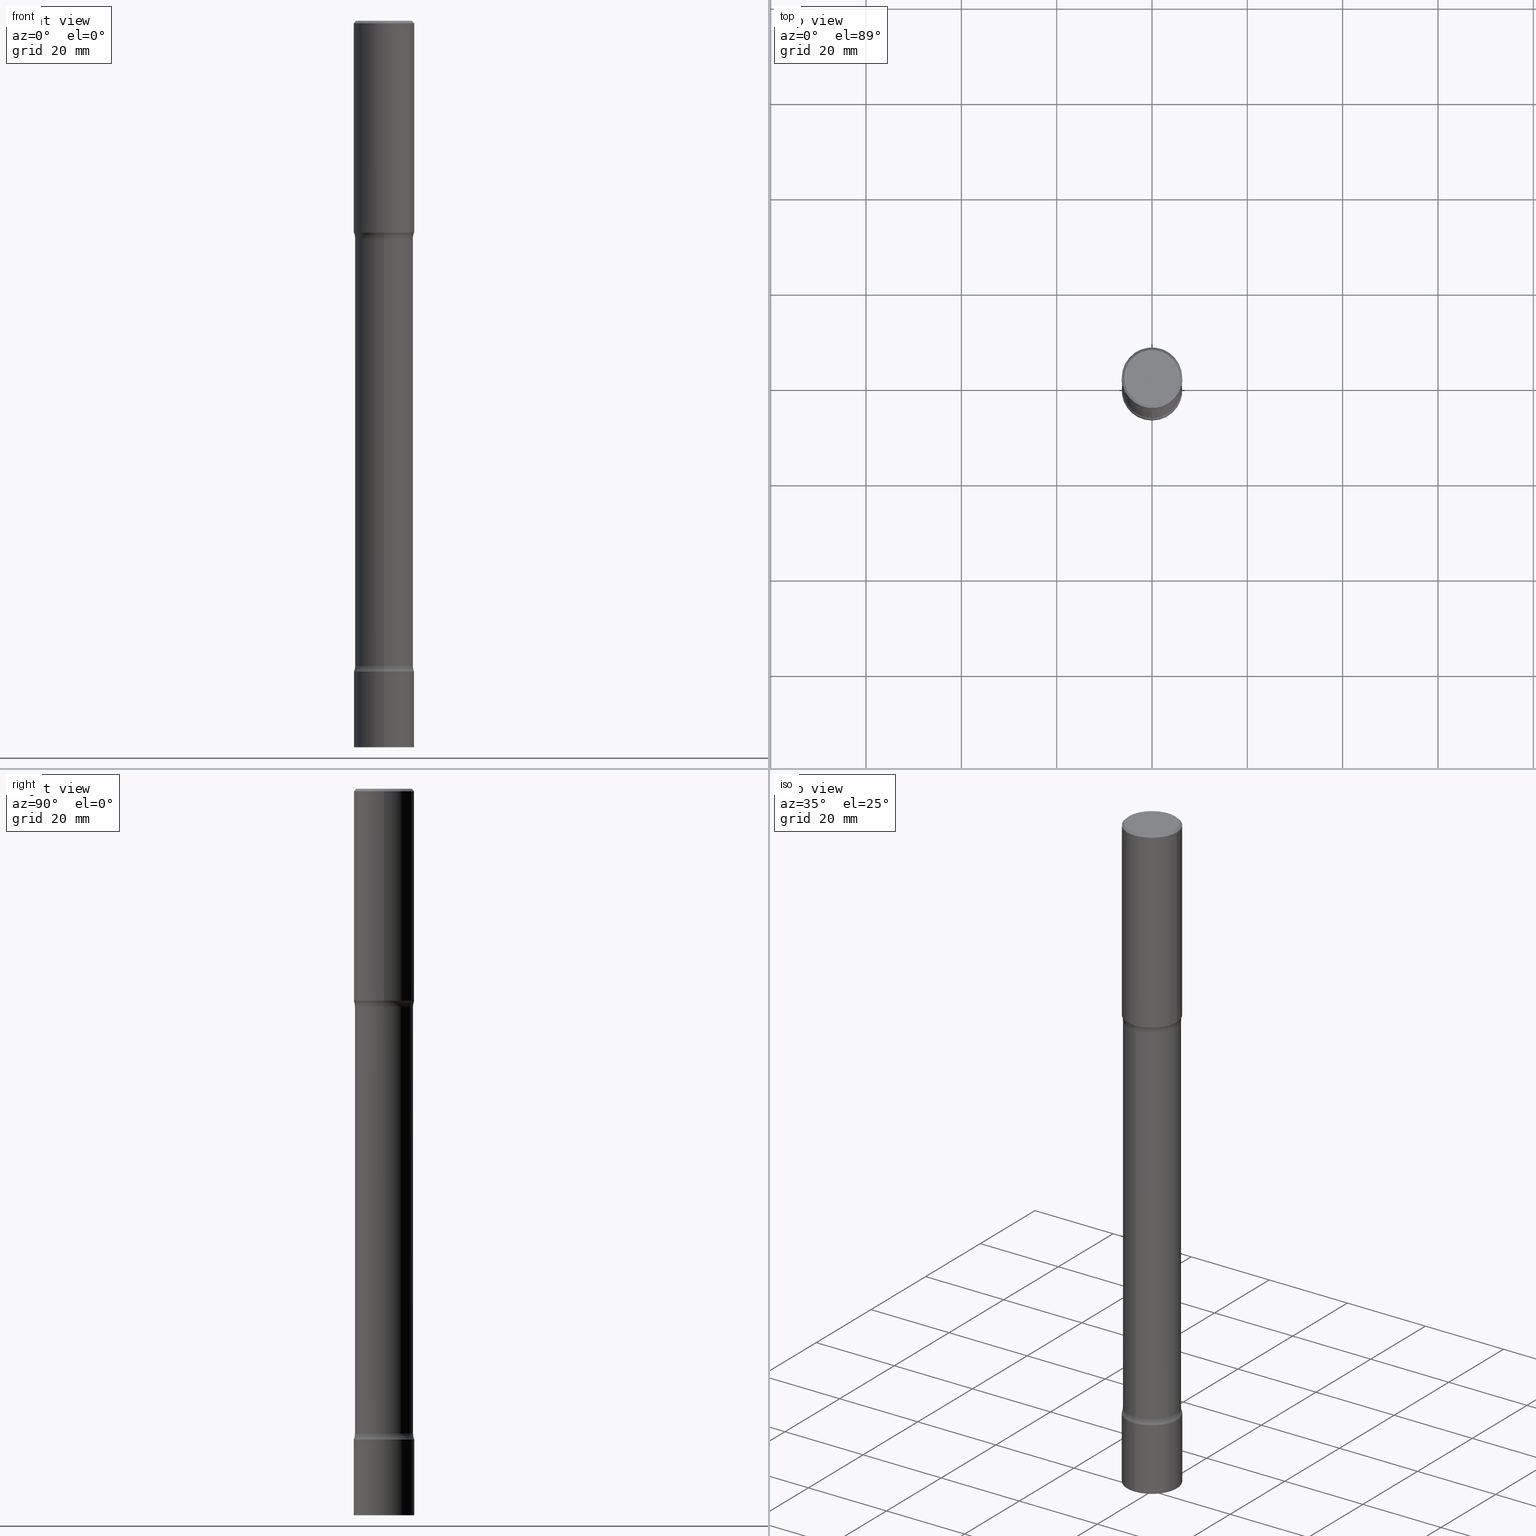
[diagram: canonical four-view strip — front | top / right | iso, engineering-drawing reading convention]
A machine part, canonical four-view strip (front | top / right | iso — engineering-drawing reading convention). The complete STEP part file that produces these views, byte-faithful:
ISO-10303-21;
HEADER;
FILE_DESCRIPTION (( 'STEP AP203' ),
    '1' );
FILE_NAME ('34894.STEP',
    '2024-03-11T13:21:53',
    ( '' ),
    ( '' ),
    'SwSTEP 2.0',
    'SolidWorks 2023',
    '' );
FILE_SCHEMA (( 'CONFIG_CONTROL_DESIGN' ));
ENDSEC;

DATA;
#1 = CARTESIAN_POINT ( 'NONE',  ( -4.175405657340879278E-46, 5.961372681521788801E-32, 1.707404996040164512E-17 ) ) ;
#2 = AXIS2_PLACEMENT_3D ( 'NONE', #96, #327, #290 ) ;
#3 = SECURITY_CLASSIFICATION ( '', '', #48 ) ;
#4 = SHAPE_DEFINITION_REPRESENTATION ( #298, #470 ) ;
#5 = EDGE_CURVE ( 'NONE', #189, #86, #404, .T. ) ;
#6 = ORIENTED_EDGE ( 'NONE', *, *, #333, .T. ) ;
#7 = PERSON_AND_ORGANIZATION ( #61, #174 ) ;
#8 = DIRECTION ( 'NONE',  ( -6.982962677686265133E-15, -1.000000000000000000, 0.000000000000000000 ) ) ;
#9 = CARTESIAN_POINT ( 'NONE',  ( -1.745740669421418766E-15, -0.2500000000000208167, -5.999999999999999112 ) ) ;
#10 = AXIS2_PLACEMENT_3D ( 'NONE', #414, #132, #62 ) ;
#11 = VECTOR ( 'NONE', #257, 39.37007874015748143 ) ;
#12 = APPROVAL_STATUS ( 'not_yet_approved' ) ;
#13 = DIRECTION ( 'NONE',  ( 2.857394861974549729E-29, -2.901579781577625714E-15, -1.000000000000000000 ) ) ;
#14 = CARTESIAN_POINT ( 'NONE',  ( 1.492846202594427368E-28, -2.058278384400118105E-14, -6.000000000000001776 ) ) ;
#15 = CYLINDRICAL_SURFACE ( 'NONE', #196, 0.2400000000000014622 ) ;
#16 = AXIS2_PLACEMENT_3D ( 'NONE', #91, #239, #231 ) ;
#17 = CC_DESIGN_SECURITY_CLASSIFICATION ( #3, ( #120 ) ) ;
#18 = DIRECTION ( 'NONE',  ( -2.445468806185136597E-29, 3.491481338843145583E-15, 1.000000000000000000 ) ) ;
#19 = EDGE_CURVE ( 'NONE', #341, #313, #24, .T. ) ;
#20 = ORIENTED_EDGE ( 'NONE', *, *, #134, .F. ) ;
#21 = CYLINDRICAL_SURFACE ( 'NONE', #167, 0.2499999999999998612 ) ;
#22 = ORIENTED_EDGE ( 'NONE', *, *, #361, .T. ) ;
#23 = FACE_OUTER_BOUND ( 'NONE', #432, .T. ) ;
#24 = CIRCLE ( 'NONE', #142, 0.2500000000000000000 ) ;
#25 = CARTESIAN_POINT ( 'NONE',  ( -1.745740669421565494E-15, -0.2499999999999998612, 8.729905339774488277E-16 ) ) ;
#26 = ORIENTED_EDGE ( 'NONE', *, *, #34, .T. ) ;
#27 = EDGE_CURVE ( 'NONE', #330, #169, #201, .T. ) ;
#28 = CARTESIAN_POINT ( 'NONE',  ( 1.314259023721017932E-28, -1.876929648051516616E-14, -5.375000000000001776 ) ) ;
#29 = PLANE ( 'NONE',  #209 ) ;
#30 = ORIENTED_EDGE ( 'NONE', *, *, #447, .F. ) ;
#31 = MANIFOLD_SOLID_BREP ( 'Body-Move/Copy2[4]', #263 ) ;
#32 = EDGE_LOOP ( 'NONE', ( #350, #295, #471, #94 ) ) ;
#33 = CARTESIAN_POINT ( 'NONE',  ( 1.314259023721017932E-28, -1.876929648051516616E-14, -5.375000000000001776 ) ) ;
#34 = EDGE_CURVE ( 'NONE', #71, #145, #75, .T. ) ;
#35 = LINE ( 'NONE', #183, #188 ) ;
#36 = EDGE_LOOP ( 'NONE', ( #26, #102 ) ) ;
#37 = ORIENTED_EDGE ( 'NONE', *, *, #260, .F. ) ;
#38 = EDGE_LOOP ( 'NONE', ( #41, #259, #147, #226 ) ) ;
#39 = VERTEX_POINT ( 'NONE', #73 ) ;
#40 = COORDINATED_UNIVERSAL_TIME_OFFSET ( 5, 0, .BEHIND. ) ;
#41 = ORIENTED_EDGE ( 'NONE', *, *, #460, .F. ) ;
#42 = AXIS2_PLACEMENT_3D ( 'NONE', #339, #18, #496 ) ;
#43 = EDGE_CURVE ( 'NONE', #473, #105, #35, .T. ) ;
#44 = DATE_AND_TIME ( #397, #415 ) ;
#45 = CARTESIAN_POINT ( 'NONE',  ( 1.467079840432764021E-28, -2.095177281545878449E-14, -6.000000000000000888 ) ) ;
#46 = PERSON_AND_ORGANIZATION_ROLE ( 'classification_officer' ) ;
#47 = CARTESIAN_POINT ( 'NONE',  ( 1.314259023721017932E-28, -1.876929648051516616E-14, -5.375000000000001776 ) ) ;
#48 = SECURITY_CLASSIFICATION_LEVEL ( 'unclassified' ) ;
#49 = CARTESIAN_POINT ( 'NONE',  ( 1.314439483324511369E-28, -1.876671219628191278E-14, -5.375000000000001776 ) ) ;
#50 = EDGE_CURVE ( 'NONE', #341, #86, #347, .T. ) ;
#51 = CIRCLE ( 'NONE', #413, 0.2499999999999998612 ) ;
#52 =( GEOMETRIC_REPRESENTATION_CONTEXT ( 3 ) GLOBAL_UNCERTAINTY_ASSIGNED_CONTEXT ( ( #288 ) ) GLOBAL_UNIT_ASSIGNED_CONTEXT ( ( #302, #107, #114 ) ) REPRESENTATION_CONTEXT ( 'NONE', 'WORKASPACE' ) );
#53 = PERSON_AND_ORGANIZATION ( #61, #174 ) ;
#54 = DIRECTION ( 'NONE',  ( 6.982962677686265922E-15, 1.000000000000000000, -4.370956789862823516E-15 ) ) ;
#55 = EDGE_CURVE ( 'NONE', #71, #189, #184, .T. ) ;
#56 = ORIENTED_EDGE ( 'NONE', *, *, #452, .F. ) ;
#57 = CARTESIAN_POINT ( 'NONE',  ( 4.279570410823991847E-29, -6.110092342975509404E-15, -1.750000000000001332 ) ) ;
#58 = EDGE_CURVE ( 'NONE', #243, #151, #153, .T. ) ;
#59 = DIRECTION ( 'NONE',  ( 6.982962677686265133E-15, 1.000000000000000000, -2.901579781577625714E-15 ) ) ;
#60 = TOROIDAL_SURFACE ( 'NONE', #16, 0.3650000000000004352, 0.1249999999999999584 ) ;
#61 = PERSON ( 'UNSPECIFIED', 'UNSPECIFIED', 'UNSPECIFIED', ('UNSPECIFIED'), ('UNSPECIFIED'), ('UNSPECIFIED') ) ;
#62 = DIRECTION ( 'NONE',  ( -6.982962677686265922E-15, -1.000000000000000000, 2.901579781577625714E-15 ) ) ;
#63 = FACE_OUTER_BOUND ( 'NONE', #331, .T. ) ;
#64 = ADVANCED_FACE ( 'NONE', ( #476 ), #234, .F. ) ;
#65 = CARTESIAN_POINT ( 'NONE',  ( -1.745740669421433952E-15, -0.2500000000000186517, -5.375000000000000888 ) ) ;
#66 = EDGE_LOOP ( 'NONE', ( #422, #72, #37, #301 ) ) ;
#67 = VECTOR ( 'NONE', #286, 39.37007874015748143 ) ;
#68 = TOROIDAL_SURFACE ( 'NONE', #345, 0.3650000000000019340, 0.1249999999999999861 ) ;
#69 = DIRECTION ( 'NONE',  ( -2.438088387897960049E-29, 3.491481338843145188E-15, 1.000000000000000000 ) ) ;
#70 = DIRECTION ( 'NONE',  ( -2.445133067387939662E-29, 3.491962135909797283E-15, 1.000000000000000000 ) ) ;
#71 = VERTEX_POINT ( 'NONE', #446 ) ;
#72 = ORIENTED_EDGE ( 'NONE', *, *, #449, .T. ) ;
#73 = CARTESIAN_POINT ( 'NONE',  ( -1.715124499442753123E-15, -0.2500000000000189848, -5.375000000000000888 ) ) ;
#74 =( LENGTH_UNIT ( ) NAMED_UNIT ( * ) SI_UNIT ( $, .METRE. ) );
#75 = CIRCLE ( 'NONE', #194, 0.2299999999999997324 ) ;
#76 = CARTESIAN_POINT ( 'NONE',  ( 0.2499999999999998612, -1.745740669421565692E-15, 1.219044193948983248E-29 ) ) ;
#77 = LINE ( 'NONE', #293, #11 ) ;
#78 = VERTEX_POINT ( 'NONE', #9 ) ;
#79 = VERTEX_POINT ( 'NONE', #403 ) ;
#80 = APPLICATION_PROTOCOL_DEFINITION ( 'international standard', 'config_control_design', 1994, #101 ) ;
#81 = AXIS2_PLACEMENT_3D ( 'NONE', #247, #378, #250 ) ;
#82 = DIRECTION ( 'NONE',  ( 1.000000000000000000, -6.860497997771530774E-15, 4.848023090163315392E-29 ) ) ;
#83 = COORDINATED_UNIVERSAL_TIME_OFFSET ( 5, 0, .BEHIND. ) ;
#84 = CC_DESIGN_PERSON_AND_ORGANIZATION_ASSIGNMENT ( #53, #314, ( #120 ) ) ;
#85 = CARTESIAN_POINT ( 'NONE',  ( 4.890937612370273159E-31, -6.982962677686291609E-17, -0.02000000000000000042 ) ) ;
#86 = VERTEX_POINT ( 'NONE', #237 ) ;
#87 = CALENDAR_DATE ( 2024, 11, 3 ) ;
#88 = CARTESIAN_POINT ( 'NONE',  ( -0.2499999999999997224, 1.675911042644701999E-15, -0.02000000000000000042 ) ) ;
#89 = CIRCLE ( 'NONE', #208, 0.2499999999999998612 ) ;
#90 = DATE_AND_TIME ( #192, #253 ) ;
#91 = CARTESIAN_POINT ( 'NONE',  ( 1.297690083665200156E-28, -1.866396144159121705E-14, -5.326010205144338094 ) ) ;
#92 = CARTESIAN_POINT ( 'NONE',  ( 1.745740669421699206E-15, 0.2499999999999814315, -5.375000000000002665 ) ) ;
#93 = DIRECTION ( 'NONE',  ( 6.982962677686265133E-15, 1.000000000000000000, -3.278217592397089830E-15 ) ) ;
#94 = ORIENTED_EDGE ( 'NONE', *, *, #435, .F. ) ;
#95 = AXIS2_PLACEMENT_3D ( 'NONE', #369, #483, #485 ) ;
#96 = CARTESIAN_POINT ( 'NONE',  ( -2.504081769186481998E-15, -0.3650000000000190314, -5.326010205144336318 ) ) ;
#97 = FACE_OUTER_BOUND ( 'NONE', #36, .T. ) ;
#98 = DIRECTION ( 'NONE',  ( -1.000000000000000000, 6.982962677686266711E-15, 0.000000000000000000 ) ) ;
#99 = CARTESIAN_POINT ( 'NONE',  ( 0.000000000000000000, 0.000000000000000000, 0.000000000000000000 ) ) ;
#100 = ORIENTED_EDGE ( 'NONE', *, *, #227, .F. ) ;
#101 = APPLICATION_CONTEXT ( 'configuration controlled 3d designs of mechanical parts and assemblies' ) ;
#102 = ORIENTED_EDGE ( 'NONE', *, *, #316, .T. ) ;
#103 = EDGE_CURVE ( 'NONE', #357, #78, #318, .T. ) ;
#104 = DIRECTION ( 'NONE',  ( 6.982962677686265922E-15, 1.000000000000000000, -3.414809992080301512E-15 ) ) ;
#105 = VERTEX_POINT ( 'NONE', #159 ) ;
#106 = ORIENTED_EDGE ( 'NONE', *, *, #240, .T. ) ;
#107 =( NAMED_UNIT ( * ) PLANE_ANGLE_UNIT ( ) SI_UNIT ( $, .RADIAN. ) );
#108 = EDGE_LOOP ( 'NONE', ( #155, #507, #220, #179 ) ) ;
#109 = DIRECTION ( 'NONE',  ( -2.445133067387939662E-29, 3.491962135909797283E-15, 1.000000000000000000 ) ) ;
#110 = AXIS2_PLACEMENT_3D ( 'NONE', #380, #418, #200 ) ;
#111 = LOCAL_TIME ( 9, 21, 53.00000000000000000, #163 ) ;
#112 = EDGE_LOOP ( 'NONE', ( #100, #191, #492, #22 ) ) ;
#113 = ORIENTED_EDGE ( 'NONE', *, *, #300, .T. ) ;
#114 =( NAMED_UNIT ( * ) SI_UNIT ( $, .STERADIAN. ) SOLID_ANGLE_UNIT ( ) );
#115 = ORIENTED_EDGE ( 'NONE', *, *, #211, .T. ) ;
#116 = LINE ( 'NONE', #315, #459 ) ;
#117 = PERSON_AND_ORGANIZATION ( #61, #174 ) ;
#118 = FACE_OUTER_BOUND ( 'NONE', #303, .T. ) ;
#119 = AXIS2_PLACEMENT_3D ( 'NONE', #129, #69, #373 ) ;
#120 = PRODUCT_DEFINITION_FORMATION_WITH_SPECIFIED_SOURCE ( 'ANY', '', #503, .NOT_KNOWN. ) ;
#121 = ADVANCED_FACE ( 'NONE', ( #118 ), #486, .F. ) ;
#122 = PERSON_AND_ORGANIZATION ( #61, #174 ) ;
#123 = CYLINDRICAL_SURFACE ( 'NONE', #95, 0.2400000000000014622 ) ;
#124 = COORDINATED_UNIVERSAL_TIME_OFFSET ( 5, 0, .BEHIND. ) ;
#125 = DIRECTION ( 'NONE',  ( 6.860497997771532351E-15, 1.000000000000000000, 0.000000000000000000 ) ) ;
#126 = CALENDAR_DATE ( 2024, 11, 3 ) ;
#127 = CARTESIAN_POINT ( 'NONE',  ( 1.675911042644746767E-15, 0.2399999999999935518, -1.798989794855665902 ) ) ;
#128 = VECTOR ( 'NONE', #506, 39.37007874015748143 ) ;
#129 = CARTESIAN_POINT ( 'NONE',  ( 4.279570410823991847E-29, -6.110092342975509404E-15, -1.750000000000001332 ) ) ;
#130 = ADVANCED_FACE ( 'NONE', ( #437 ), #15, .T. ) ;
#131 = PLANE ( 'NONE',  #119 ) ;
#132 = DIRECTION ( 'NONE',  ( -2.857394861974549168E-29, 2.901579781577625714E-15, 1.000000000000000000 ) ) ;
#133 = CIRCLE ( 'NONE', #229, 0.2400000000000019340 ) ;
#134 = EDGE_CURVE ( 'NONE', #473, #169, #264, .T. ) ;
#135 = VECTOR ( 'NONE', #388, 39.37007874015748143 ) ;
#136 = DIRECTION ( 'NONE',  ( 6.982962677686265922E-15, 1.000000000000000000, -4.553079989440420159E-15 ) ) ;
#137 = DIRECTION ( 'NONE',  ( 2.857394861974549729E-29, -2.901579781577625714E-15, -1.000000000000000000 ) ) ;
#138 = EDGE_CURVE ( 'NONE', #357, #79, #116, .T. ) ;
#139 = DIRECTION ( 'NONE',  ( 2.857394861974549729E-29, -2.901579781577625714E-15, -1.000000000000000000 ) ) ;
#140 = ADVANCED_FACE ( 'NONE', ( #160 ), #123, .T. ) ;
#141 = ORIENTED_EDGE ( 'NONE', *, *, #474, .F. ) ;
#142 = AXIS2_PLACEMENT_3D ( 'NONE', #394, #144, #262 ) ;
#143 = AXIS2_PLACEMENT_3D ( 'NONE', #351, #109, #176 ) ;
#144 = DIRECTION ( 'NONE',  ( -2.445468806185136597E-29, 3.491481338843145583E-15, 1.000000000000000000 ) ) ;
#145 = VERTEX_POINT ( 'NONE', #401 ) ;
#146 = LENGTH_MEASURE_WITH_UNIT ( LENGTH_MEASURE( 0.02539999999999999897 ), #74 );
#147 = ORIENTED_EDGE ( 'NONE', *, *, #55, .T. ) ;
#148 = ADVANCED_FACE ( 'NONE', ( #442 ), #307, .F. ) ;
#149 = CARTESIAN_POINT ( 'NONE',  ( 2.920953000947528011E-29, -8.398321492597618076E-15, -1.798989794855665014 ) ) ;
#150 = ORIENTED_EDGE ( 'NONE', *, *, #412, .T. ) ;
#151 = VERTEX_POINT ( 'NONE', #279 ) ;
#152 = CARTESIAN_POINT ( 'NONE',  ( 1.675911042644863321E-15, 0.2399999999999808675, -6.000000000000002665 ) ) ;
#153 = CIRCLE ( 'NONE', #273, 0.1249999999999999584 ) ;
#154 = CIRCLE ( 'NONE', #445, 0.1249999999999999584 ) ;
#155 = ORIENTED_EDGE ( 'NONE', *, *, #43, .F. ) ;
#156 = DIRECTION ( 'NONE',  ( 1.000000000000000000, 0.000000000000000000, 0.000000000000000000 ) ) ;
#157 = ORIENTED_EDGE ( 'NONE', *, *, #300, .F. ) ;
#158 = PERSON_AND_ORGANIZATION_ROLE ( 'creator' ) ;
#159 = CARTESIAN_POINT ( 'NONE',  ( -1.680822009453898613E-15, -0.2400000000000195310, -5.326010205144336318 ) ) ;
#160 = FACE_OUTER_BOUND ( 'NONE', #32, .T. ) ;
#161 = AXIS2_PLACEMENT_3D ( 'NONE', #85, #282, #98 ) ;
#162 = DIRECTION ( 'NONE',  ( 2.857394861974549168E-29, -2.901579781577625714E-15, -1.000000000000000000 ) ) ;
#163 = COORDINATED_UNIVERSAL_TIME_OFFSET ( 5, 0, .BEHIND. ) ;
#164 = DIRECTION ( 'NONE',  ( -2.445133067387939381E-29, 3.491962135909797283E-15, 1.000000000000000000 ) ) ;
#165 = APPROVAL ( #399, 'UNSPECIFIED' ) ;
#166 = CARTESIAN_POINT ( 'NONE',  ( 2.548781377355619641E-15, 0.3649999999999817835, -5.326010205144338983 ) ) ;
#167 = AXIS2_PLACEMENT_3D ( 'NONE', #204, #170, #332 ) ;
#168 = DIRECTION ( 'NONE',  ( 2.857394861974549729E-29, -2.901579781577625714E-15, -1.000000000000000000 ) ) ;
#169 = VERTEX_POINT ( 'NONE', #398 ) ;
#170 = DIRECTION ( 'NONE',  ( -2.445468806185136597E-29, 3.491481338843145583E-15, 1.000000000000000000 ) ) ;
#171 = ORIENTED_EDGE ( 'NONE', *, *, #412, .F. ) ;
#172 = APPROVAL ( #311, 'UNSPECIFIED' ) ;
#173 = DIRECTION ( 'NONE',  ( 2.857394861974549729E-29, -2.901579781577625714E-15, -1.000000000000000000 ) ) ;
#174 = ORGANIZATION ( 'UNSPECIFIED', 'UNSPECIFIED', '' ) ;
#175 = CARTESIAN_POINT ( 'NONE',  ( 1.745740669421607896E-15, 0.2499999999999937272, -1.750000000000001998 ) ) ;
#176 = DIRECTION ( 'NONE',  ( -6.982962677686265922E-15, -1.000000000000000000, 4.370956789862823516E-15 ) ) ;
#177 = ORIENTED_EDGE ( 'NONE', *, *, #312, .F. ) ;
#178 = CARTESIAN_POINT ( 'NONE',  ( 2.548781377355529317E-15, 0.3649999999999934963, -1.798989794855666124 ) ) ;
#179 = ORIENTED_EDGE ( 'NONE', *, *, #240, .F. ) ;
#180 = AXIS2_PLACEMENT_3D ( 'NONE', #448, #205, #59 ) ;
#181 = AXIS2_PLACEMENT_3D ( 'NONE', #426, #431, #340 ) ;
#182 = CARTESIAN_POINT ( 'NONE',  ( 3.298614971474573348E-28, 5.276852706118110988E-15, -6.000000000000001776 ) ) ;
#183 = CARTESIAN_POINT ( 'NONE',  ( -1.646519519465028325E-15, -0.2400000000000220568, -6.000000000000000888 ) ) ;
#184 = LINE ( 'NONE', #348, #128 ) ;
#185 = PLANE ( 'NONE',  #274 ) ;
#186 = ORIENTED_EDGE ( 'NONE', *, *, #452, .T. ) ;
#187 = APPROVAL_DATE_TIME ( #44, #172 ) ;
#188 = VECTOR ( 'NONE', #427, 39.37007874015748143 ) ;
#189 = VERTEX_POINT ( 'NONE', #88 ) ;
#190 = PERSON_AND_ORGANIZATION ( #61, #174 ) ;
#191 = ORIENTED_EDGE ( 'NONE', *, *, #235, .F. ) ;
#192 = CALENDAR_DATE ( 2024, 11, 3 ) ;
#193 = DIRECTION ( 'NONE',  ( -2.445468806185136597E-29, 3.491481338843145583E-15, 1.000000000000000000 ) ) ;
#194 = AXIS2_PLACEMENT_3D ( 'NONE', #1, #386, #425 ) ;
#195 = DIRECTION ( 'NONE',  ( 2.445133067387939381E-29, -3.491962135909797283E-15, -1.000000000000000000 ) ) ;
#196 = AXIS2_PLACEMENT_3D ( 'NONE', #14, #408, #360 ) ;
#197 = DIRECTION ( 'NONE',  ( 6.982962677686265922E-15, 1.000000000000000000, -3.491962135909797283E-15 ) ) ;
#198 = CARTESIAN_POINT ( 'NONE',  ( -2.504081769186592833E-15, -0.3650000000000103162, -1.798989794855663904 ) ) ;
#199 = EDGE_CURVE ( 'NONE', #39, #243, #89, .T. ) ;
#200 = DIRECTION ( 'NONE',  ( 1.000000000000000000, -6.982962677686266711E-15, 0.000000000000000000 ) ) ;
#201 = CIRCLE ( 'NONE', #500, 0.2500000000000019984 ) ;
#202 = CARTESIAN_POINT ( 'NONE',  ( 0.2500000000000000000, -7.855833012397075293E-15, -1.750000000000001332 ) ) ;
#203 = EDGE_CURVE ( 'NONE', #213, #473, #133, .T. ) ;
#204 = CARTESIAN_POINT ( 'NONE',  ( 0.000000000000000000, 0.000000000000000000, 0.000000000000000000 ) ) ;
#205 = DIRECTION ( 'NONE',  ( 2.857394861974549729E-29, -2.901579781577625714E-15, -1.000000000000000000 ) ) ;
#206 = DIMENSIONAL_EXPONENTS ( 1.000000000000000000, 0.000000000000000000, 0.000000000000000000, 0.000000000000000000, 0.000000000000000000, 0.000000000000000000, 0.000000000000000000 ) ;
#207 = ORIENTED_EDGE ( 'NONE', *, *, #103, .T. ) ;
#208 = AXIS2_PLACEMENT_3D ( 'NONE', #47, #13, #54 ) ;
#209 = AXIS2_PLACEMENT_3D ( 'NONE', #182, #346, #504 ) ;
#210 = CARTESIAN_POINT ( 'NONE',  ( 2.784533862552435787E-29, -8.251069772296270979E-15, -1.750000000000001332 ) ) ;
#211 = EDGE_CURVE ( 'NONE', #313, #341, #428, .T. ) ;
#212 = CARTESIAN_POINT ( 'NONE',  ( 2.924517050662196265E-29, -8.393217570553099551E-15, -1.798989794855665014 ) ) ;
#213 = VERTEX_POINT ( 'NONE', #127 ) ;
#214 = ORIENTED_EDGE ( 'NONE', *, *, #103, .F. ) ;
#215 = ORIENTED_EDGE ( 'NONE', *, *, #134, .T. ) ;
#216 = AXIS2_PLACEMENT_3D ( 'NONE', #456, #173, #136 ) ;
#217 = CC_DESIGN_APPROVAL ( #421, ( #251 ) ) ;
#218 = ADVANCED_FACE ( 'NONE', ( #319 ), #60, .F. ) ;
#219 = ORIENTED_EDGE ( 'NONE', *, *, #50, .T. ) ;
#220 = ORIENTED_EDGE ( 'NONE', *, *, #435, .T. ) ;
#221 = FACE_OUTER_BOUND ( 'NONE', #321, .T. ) ;
#222 = ORIENTED_EDGE ( 'NONE', *, *, #27, .F. ) ;
#223 = ADVANCED_FACE ( 'NONE', ( #441 ), #453, .T. ) ;
#224 = ORIENTED_EDGE ( 'NONE', *, *, #235, .T. ) ;
#225 = DIRECTION ( 'NONE',  ( 2.438088387897960049E-29, -3.491481338843145188E-15, -1.000000000000000000 ) ) ;
#226 = ORIENTED_EDGE ( 'NONE', *, *, #5, .T. ) ;
#227 = EDGE_CURVE ( 'NONE', #39, #105, #443, .T. ) ;
#228 = PERSON_AND_ORGANIZATION_ROLE ( 'creator' ) ;
#229 = AXIS2_PLACEMENT_3D ( 'NONE', #439, #325, #277 ) ;
#230 = VECTOR ( 'NONE', #139, 39.37007874015748143 ) ;
#231 = DIRECTION ( 'NONE',  ( 6.982962677686265922E-15, 1.000000000000000000, -2.901579781577625714E-15 ) ) ;
#232 = DIRECTION ( 'NONE',  ( 6.982962677686265922E-15, 1.000000000000000000, -2.901579781577625714E-15 ) ) ;
#233 = APPROVAL_ROLE ( '' ) ;
#234 = PLANE ( 'NONE',  #493 ) ;
#235 = EDGE_CURVE ( 'NONE', #243, #39, #51, .T. ) ;
#236 = APPROVAL_DATE_TIME ( #482, #421 ) ;
#237 = CARTESIAN_POINT ( 'NONE',  ( 0.2499999999999997224, -1.784954126219743822E-15, -0.02000000000000000042 ) ) ;
#238 = ADVANCED_FACE ( 'NONE', ( #488 ), #416, .T. ) ;
#239 = DIRECTION ( 'NONE',  ( 2.857394861974549729E-29, -2.901579781577625714E-15, -1.000000000000000000 ) ) ;
#240 = EDGE_CURVE ( 'NONE', #105, #151, #296, .T. ) ;
#241 = CARTESIAN_POINT ( 'NONE',  ( 0.000000000000000000, 0.000000000000000000, 0.000000000000000000 ) ) ;
#242 = FACE_OUTER_BOUND ( 'NONE', #498, .T. ) ;
#243 = VERTEX_POINT ( 'NONE', #92 ) ;
#244 = AXIS2_PLACEMENT_3D ( 'NONE', #99, #433, #424 ) ;
#245 = DIRECTION ( 'NONE',  ( -2.445133067387939662E-29, 3.491962135909797283E-15, 1.000000000000000000 ) ) ;
#246 = APPLICATION_CONTEXT ( 'configuration controlled 3d designs of mechanical parts and assemblies' ) ;
#247 = CARTESIAN_POINT ( 'NONE',  ( 4.890937612370273159E-31, -6.982962677686291609E-17, -0.02000000000000000042 ) ) ;
#248 = ADVANCED_FACE ( 'NONE', ( #23 ), #344, .T. ) ;
#249 = ORIENTED_EDGE ( 'NONE', *, *, #474, .T. ) ;
#250 = DIRECTION ( 'NONE',  ( -1.000000000000000000, 6.982962677686266711E-15, 0.000000000000000000 ) ) ;
#251 = PRODUCT_DEFINITION ( 'UNKNOWN', '', #120, #495 ) ;
#252 = AXIS2_PLACEMENT_3D ( 'NONE', #241, #291, #489 ) ;
#253 = LOCAL_TIME ( 9, 21, 53.00000000000000000, #478 ) ;
#254 = LINE ( 'NONE', #467, #135 ) ;
#255 = ORIENTED_EDGE ( 'NONE', *, *, #260, .T. ) ;
#256 = ORIENTED_EDGE ( 'NONE', *, *, #58, .F. ) ;
#257 = DIRECTION ( 'NONE',  ( 0.7071067811865471286, -7.319954787623254468E-15, -0.7071067811865479058 ) ) ;
#258 = DIRECTION ( 'NONE',  ( 6.982962677686265133E-15, 1.000000000000000000, -3.278217592397089830E-15 ) ) ;
#259 = ORIENTED_EDGE ( 'NONE', *, *, #34, .F. ) ;
#260 = EDGE_CURVE ( 'NONE', #86, #189, #336, .T. ) ;
#261 = CYLINDRICAL_SURFACE ( 'NONE', #181, 0.2499999999999998612 ) ;
#262 = DIRECTION ( 'NONE',  ( 1.000000000000000000, -6.982962677686266711E-15, 0.000000000000000000 ) ) ;
#263 = CLOSED_SHELL ( 'NONE', ( #140, #218, #400, #328, #64, #338, #148, #130 ) ) ;
#264 = CIRCLE ( 'NONE', #281, 0.1249999999999999584 ) ;
#265 = APPROVAL_PERSON_ORGANIZATION ( #484, #172, #440 ) ;
#266 = AXIS2_PLACEMENT_3D ( 'NONE', #212, #267, #104 ) ;
#267 = DIRECTION ( 'NONE',  ( 2.857394861974549729E-29, -2.901579781577625714E-15, -1.000000000000000000 ) ) ;
#268 = ORIENTED_EDGE ( 'NONE', *, *, #19, .F. ) ;
#269 = ORIENTED_EDGE ( 'NONE', *, *, #199, .T. ) ;
#270 = ORIENTED_EDGE ( 'NONE', *, *, #312, .T. ) ;
#271 = APPROVAL_ROLE ( '' ) ;
#272 = CARTESIAN_POINT ( 'NONE',  ( 4.279570410823991847E-29, -6.110092342975509404E-15, -1.750000000000001332 ) ) ;
#273 = AXIS2_PLACEMENT_3D ( 'NONE', #166, #409, #8 ) ;
#274 = AXIS2_PLACEMENT_3D ( 'NONE', #304, #225, #385 ) ;
#275 = DIRECTION ( 'NONE',  ( 2.857394861974549729E-29, -2.901579781577625714E-15, -1.000000000000000000 ) ) ;
#276 = CARTESIAN_POINT ( 'NONE',  ( 0.000000000000000000, 0.000000000000000000, 0.000000000000000000 ) ) ;
#277 = DIRECTION ( 'NONE',  ( 6.982962677686265922E-15, 1.000000000000000000, -3.414809992080301512E-15 ) ) ;
#278 = DATE_AND_TIME ( #402, #438 ) ;
#279 = CARTESIAN_POINT ( 'NONE',  ( 1.675911042644840444E-15, 0.2399999999999823386, -5.326010205144338983 ) ) ;
#280 = APPROVAL_DATE_TIME ( #278, #165 ) ;
#281 = AXIS2_PLACEMENT_3D ( 'NONE', #198, #82, #125 ) ;
#282 = DIRECTION ( 'NONE',  ( 2.445468806185136597E-29, -3.491481338843145583E-15, -1.000000000000000000 ) ) ;
#283 = AXIS2_PLACEMENT_3D ( 'NONE', #276, #324, #156 ) ;
#284 = DIRECTION ( 'NONE',  ( -6.982962677686265922E-15, -1.000000000000000000, 4.370956789862823516E-15 ) ) ;
#285 = ADVANCED_FACE ( 'NONE', ( #419 ), #131, .F. ) ;
#286 = DIRECTION ( 'NONE',  ( -2.445133067387939381E-29, 3.491962135909797283E-15, 1.000000000000000000 ) ) ;
#287 = ORIENTED_EDGE ( 'NONE', *, *, #138, .T. ) ;
#288 = UNCERTAINTY_MEASURE_WITH_UNIT (LENGTH_MEASURE( 1.000000000000000082E-05 ), #302, 'distance_accuracy_value', 'NONE');
#289 = CARTESIAN_POINT ( 'NONE',  ( 1.300260704910041885E-28, -1.862714868225833602E-14, -5.326010205144338094 ) ) ;
#290 = DIRECTION ( 'NONE',  ( 6.860497997771532351E-15, 1.000000000000000000, 0.000000000000000000 ) ) ;
#291 = DIRECTION ( 'NONE',  ( -2.445133067387939662E-29, 3.491962135909797283E-15, 1.000000000000000000 ) ) ;
#292 = PRODUCT_RELATED_PRODUCT_CATEGORY ( 'detail', '', ( #503 ) ) ;
#293 = CARTESIAN_POINT ( 'NONE',  ( 0.2499999999999997224, -1.784954126219743822E-15, -0.02000000000000000042 ) ) ;
#294 = ORIENTED_EDGE ( 'NONE', *, *, #333, .F. ) ;
#295 = ORIENTED_EDGE ( 'NONE', *, *, #43, .T. ) ;
#296 = CIRCLE ( 'NONE', #216, 0.2400000000000009626 ) ;
#297 = DIRECTION ( 'NONE',  ( 2.857394861974549729E-29, -2.901579781577625714E-15, -1.000000000000000000 ) ) ;
#298 = PRODUCT_DEFINITION_SHAPE ( 'NONE', 'NONE',  #251 ) ;
#299 = CARTESIAN_POINT ( 'NONE',  ( 2.784533862552435787E-29, -8.251069772296270979E-15, -1.750000000000001332 ) ) ;
#300 = EDGE_CURVE ( 'NONE', #78, #310, #411, .T. ) ;
#301 = ORIENTED_EDGE ( 'NONE', *, *, #50, .F. ) ;
#302 =( CONVERSION_BASED_UNIT ( 'INCH', #146 ) LENGTH_UNIT ( ) NAMED_UNIT ( #206 ) );
#303 = EDGE_LOOP ( 'NONE', ( #150, #270 ) ) ;
#304 = CARTESIAN_POINT ( 'NONE',  ( 1.606081415867839292E-15, 0.2299999999999997324, -7.945036829537217511E-16 ) ) ;
#305 = ORIENTED_EDGE ( 'NONE', *, *, #227, .T. ) ;
#306 = CLOSED_SHELL ( 'NONE', ( #349, #248, #223, #370, #285, #490 ) ) ;
#307 = TOROIDAL_SURFACE ( 'NONE', #501, 0.3650000000000004352, 0.1249999999999999584 ) ;
#308 = EDGE_LOOP ( 'NONE', ( #186, #287, #171, #157 ) ) ;
#309 = LOCAL_TIME ( 9, 21, 53.00000000000000000, #40 ) ;
#310 = VERTEX_POINT ( 'NONE', #65 ) ;
#311 = APPROVAL_STATUS ( 'not_yet_approved' ) ;
#312 = EDGE_CURVE ( 'NONE', #79, #310, #326, .T. ) ;
#313 = VERTEX_POINT ( 'NONE', #450 ) ;
#314 = PERSON_AND_ORGANIZATION_ROLE ( 'design_supplier' ) ;
#315 = CARTESIAN_POINT ( 'NONE',  ( 1.776356839400249281E-15, 0.2499999999999998612, -8.729905339774488277E-16 ) ) ;
#316 = EDGE_CURVE ( 'NONE', #145, #71, #405, .T. ) ;
#317 = MECHANICAL_CONTEXT ( 'NONE', #246, 'mechanical' ) ;
#318 = CIRCLE ( 'NONE', #365, 0.2499999999999998612 ) ;
#319 = FACE_OUTER_BOUND ( 'NONE', #423, .T. ) ;
#320 = CC_DESIGN_PERSON_AND_ORGANIZATION_ASSIGNMENT ( #190, #158, ( #120 ) ) ;
#321 = EDGE_LOOP ( 'NONE', ( #390, #207, #113, #177 ) ) ;
#322 = PERSON_AND_ORGANIZATION ( #61, #174 ) ;
#323 = DIRECTION ( 'NONE',  ( -6.982962677686265922E-15, -1.000000000000000000, 4.370956789862823516E-15 ) ) ;
#324 = DIRECTION ( 'NONE',  ( 0.000000000000000000, 0.000000000000000000, 1.000000000000000000 ) ) ;
#325 = DIRECTION ( 'NONE',  ( 2.857394861974549729E-29, -2.901579781577625714E-15, -1.000000000000000000 ) ) ;
#326 = CIRCLE ( 'NONE', #353, 0.2499999999999998612 ) ;
#327 = DIRECTION ( 'NONE',  ( 1.000000000000000000, -6.860497997771530774E-15, 4.848023090163315392E-29 ) ) ;
#328 = ADVANCED_FACE ( 'NONE', ( #63 ), #420, .F. ) ;
#329 = CARTESIAN_POINT ( 'NONE',  ( 1.314259023721017932E-28, -1.876929648051516616E-14, -5.375000000000001776 ) ) ;
#330 = VERTEX_POINT ( 'NONE', #175 ) ;
#331 = EDGE_LOOP ( 'NONE', ( #20, #392, #249, #465 ) ) ;
#332 = DIRECTION ( 'NONE',  ( 1.000000000000000000, -6.982962677686266711E-15, 4.876176775795935793E-29 ) ) ;
#333 = EDGE_CURVE ( 'NONE', #169, #330, #480, .T. ) ;
#334 = DIRECTION ( 'NONE',  ( 2.857394861974549729E-29, -2.901579781577625714E-15, -1.000000000000000000 ) ) ;
#335 = AXIS2_PLACEMENT_3D ( 'NONE', #343, #352, #502 ) ;
#336 = CIRCLE ( 'NONE', #110, 0.2499999999999997224 ) ;
#337 = CC_DESIGN_APPROVAL ( #172, ( #120 ) ) ;
#338 = ADVANCED_FACE ( 'NONE', ( #242 ), #455, .F. ) ;
#339 = CARTESIAN_POINT ( 'NONE',  ( -4.175405657340879278E-46, 5.961372681521788801E-32, 1.707404996040164512E-17 ) ) ;
#340 = DIRECTION ( 'NONE',  ( -6.982962677686265922E-15, -1.000000000000000000, 3.491962135909797283E-15 ) ) ;
#341 = VERTEX_POINT ( 'NONE', #202 ) ;
#342 = FACE_OUTER_BOUND ( 'NONE', #464, .T. ) ;
#343 = CARTESIAN_POINT ( 'NONE',  ( 4.890937612370273159E-31, -6.982962677686291609E-17, -0.02000000000000000042 ) ) ;
#344 = CONICAL_SURFACE ( 'NONE', #81, 0.2499999999999997224, 0.7853981633974477239 ) ;
#345 = AXIS2_PLACEMENT_3D ( 'NONE', #149, #297, #393 ) ;
#346 = DIRECTION ( 'NONE',  ( 2.445133067387939381E-29, -3.491962135909797283E-15, -1.000000000000000000 ) ) ;
#347 = LINE ( 'NONE', #76, #469 ) ;
#348 = CARTESIAN_POINT ( 'NONE',  ( -0.2499999999999997224, 1.675911042644701999E-15, -0.02000000000000000042 ) ) ;
#349 = ADVANCED_FACE ( 'NONE', ( #375 ), #21, .T. ) ;
#350 = ORIENTED_EDGE ( 'NONE', *, *, #203, .T. ) ;
#351 = CARTESIAN_POINT ( 'NONE',  ( 1.467079840432764021E-28, -2.095177281545878449E-14, -6.000000000000000888 ) ) ;
#352 = DIRECTION ( 'NONE',  ( -2.445468806185136597E-29, 3.491481338843145583E-15, 1.000000000000000000 ) ) ;
#353 = AXIS2_PLACEMENT_3D ( 'NONE', #329, #245, #284 ) ;
#354 = AXIS2_PLACEMENT_3D ( 'NONE', #289, #334, #494 ) ;
#355 = CC_DESIGN_PERSON_AND_ORGANIZATION_ASSIGNMENT ( #444, #436, ( #503 ) ) ;
#356 = DATE_TIME_ROLE ( 'creation_date' ) ;
#357 = VERTEX_POINT ( 'NONE', #491 ) ;
#358 = MANIFOLD_SOLID_BREP ( 'Body-Move/Copy2[1]', #371 ) ;
#359 = EDGE_LOOP ( 'NONE', ( #268, #468 ) ) ;
#360 = DIRECTION ( 'NONE',  ( 6.982962677686265922E-15, 1.000000000000000000, -4.553079989440410693E-15 ) ) ;
#361 = EDGE_CURVE ( 'NONE', #151, #105, #395, .T. ) ;
#362 = DIRECTION ( 'NONE',  ( -2.445133067387939662E-29, 3.491962135909797283E-15, 1.000000000000000000 ) ) ;
#363 = CC_DESIGN_PERSON_AND_ORGANIZATION_ASSIGNMENT ( #322, #228, ( #251 ) ) ;
#364 = APPLICATION_PROTOCOL_DEFINITION ( 'international standard', 'config_control_design', 1994, #246 ) ;
#365 = AXIS2_PLACEMENT_3D ( 'NONE', #45, #362, #323 ) ;
#366 = CIRCLE ( 'NONE', #396, 0.2499999999999998612 ) ;
#367 = DIRECTION ( 'NONE',  ( 6.982962677686265922E-15, 1.000000000000000000, -2.901579781577625714E-15 ) ) ;
#368 = DIRECTION ( 'NONE',  ( 1.000000000000000000, -6.982962677686266711E-15, 0.000000000000000000 ) ) ;
#369 = CARTESIAN_POINT ( 'NONE',  ( 1.492846202594427368E-28, -2.058278384400118105E-14, -6.000000000000001776 ) ) ;
#370 = ADVANCED_FACE ( 'NONE', ( #97 ), #185, .F. ) ;
#371 = CLOSED_SHELL ( 'NONE', ( #238, #410, #121, #466 ) ) ;
#372 = AXIS2_PLACEMENT_3D ( 'NONE', #49, #195, #197 ) ;
#373 = DIRECTION ( 'NONE',  ( 1.000000000000000000, -6.982962677686265922E-15, 4.876176775795935793E-29 ) ) ;
#374 = APPROVAL_PERSON_ORGANIZATION ( #117, #165, #233 ) ;
#375 = FACE_OUTER_BOUND ( 'NONE', #66, .T. ) ;
#376 = MANIFOLD_SOLID_BREP ( 'Body-Move/Copy2[2]', #306 ) ;
#377 = ORIENTED_EDGE ( 'NONE', *, *, #316, .F. ) ;
#378 = DIRECTION ( 'NONE',  ( 2.445468806185136597E-29, -3.491481338843145583E-15, -1.000000000000000000 ) ) ;
#379 = CC_DESIGN_DATE_AND_TIME_ASSIGNMENT ( #406, #356, ( #251 ) ) ;
#380 = CARTESIAN_POINT ( 'NONE',  ( 4.890937612370273159E-31, -6.982962677686291609E-17, -0.02000000000000000042 ) ) ;
#381 = AXIS2_PLACEMENT_3D ( 'NONE', #272, #193, #368 ) ;
#382 = CC_DESIGN_DATE_AND_TIME_ASSIGNMENT ( #90, #475, ( #3 ) ) ;
#383 = FACE_OUTER_BOUND ( 'NONE', #417, .T. ) ;
#384 = ORIENTED_EDGE ( 'NONE', *, *, #199, .F. ) ;
#385 = DIRECTION ( 'NONE',  ( -1.000000000000000000, 6.982962677686265922E-15, -4.876176775795935793E-29 ) ) ;
#386 = DIRECTION ( 'NONE',  ( -2.445468806185136597E-29, 3.491481338843145583E-15, 1.000000000000000000 ) ) ;
#387 = CIRCLE ( 'NONE', #143, 0.2499999999999998612 ) ;
#388 = DIRECTION ( 'NONE',  ( -2.445468806185136877E-29, 3.491481338843145188E-15, 1.000000000000000000 ) ) ;
#389 = DIRECTION ( 'NONE',  ( -2.445468806185136877E-29, 3.491481338843145188E-15, 1.000000000000000000 ) ) ;
#390 = ORIENTED_EDGE ( 'NONE', *, *, #138, .F. ) ;
#391 = DIRECTION ( 'NONE',  ( -1.000000000000000000, 6.982962677686265922E-15, -4.883557194083112340E-29 ) ) ;
#392 = ORIENTED_EDGE ( 'NONE', *, *, #203, .F. ) ;
#393 = DIRECTION ( 'NONE',  ( 6.982962677686265133E-15, 1.000000000000000000, -2.901579781577625714E-15 ) ) ;
#394 = CARTESIAN_POINT ( 'NONE',  ( 4.279570410823991847E-29, -6.110092342975509404E-15, -1.750000000000001332 ) ) ;
#395 = CIRCLE ( 'NONE', #354, 0.2400000000000009626 ) ;
#396 = AXIS2_PLACEMENT_3D ( 'NONE', #33, #70, #457 ) ;
#397 = CALENDAR_DATE ( 2024, 11, 3 ) ;
#398 = CARTESIAN_POINT ( 'NONE',  ( -1.715124499442868494E-15, -0.2500000000000102141, -1.750000000000000444 ) ) ;
#399 = APPROVAL_STATUS ( 'not_yet_approved' ) ;
#400 = ADVANCED_FACE ( 'NONE', ( #342 ), #68, .F. ) ;
#401 = CARTESIAN_POINT ( 'NONE',  ( 0.2299999999999997324, -1.681434332853597236E-15, 1.707404996041313907E-17 ) ) ;
#402 = CALENDAR_DATE ( 2024, 11, 3 ) ;
#403 = CARTESIAN_POINT ( 'NONE',  ( 1.776356839400396404E-15, 0.2499999999999811262, -5.375000000000002665 ) ) ;
#404 = CIRCLE ( 'NONE', #335, 0.2499999999999997224 ) ;
#405 = CIRCLE ( 'NONE', #42, 0.2299999999999997324 ) ;
#406 = DATE_AND_TIME ( #87, #111 ) ;
#407 = CC_DESIGN_APPROVAL ( #165, ( #3 ) ) ;
#408 = DIRECTION ( 'NONE',  ( 2.857394861974549729E-29, -2.901579781577625714E-15, -1.000000000000000000 ) ) ;
#409 = DIRECTION ( 'NONE',  ( -1.000000000000000000, 6.982962677686265922E-15, -4.883557194083112340E-29 ) ) ;
#410 = ADVANCED_FACE ( 'NONE', ( #221 ), #261, .T. ) ;
#411 = LINE ( 'NONE', #25, #67 ) ;
#412 = EDGE_CURVE ( 'NONE', #310, #79, #366, .T. ) ;
#413 = AXIS2_PLACEMENT_3D ( 'NONE', #28, #137, #454 ) ;
#414 = CARTESIAN_POINT ( 'NONE',  ( 1.314439483324511369E-28, -1.876671219628191278E-14, -5.375000000000001776 ) ) ;
#415 = LOCAL_TIME ( 9, 21, 53.00000000000000000, #83 ) ;
#416 = CYLINDRICAL_SURFACE ( 'NONE', #252, 0.2499999999999998612 ) ;
#417 = EDGE_LOOP ( 'NONE', ( #56, #214 ) ) ;
#418 = DIRECTION ( 'NONE',  ( -2.445468806185136597E-29, 3.491481338843145583E-15, 1.000000000000000000 ) ) ;
#419 = FACE_OUTER_BOUND ( 'NONE', #359, .T. ) ;
#420 = TOROIDAL_SURFACE ( 'NONE', #180, 0.3650000000000019340, 0.1249999999999999861 ) ;
#421 = APPROVAL ( #12, 'UNSPECIFIED' ) ;
#422 = ORIENTED_EDGE ( 'NONE', *, *, #19, .T. ) ;
#423 = EDGE_LOOP ( 'NONE', ( #384, #305, #106, #256 ) ) ;
#424 = DIRECTION ( 'NONE',  ( 1.000000000000000000, -6.982962677686266711E-15, 4.876176775795935793E-29 ) ) ;
#425 = DIRECTION ( 'NONE',  ( 1.000000000000000000, -6.982962677686266711E-15, 4.875813741439105379E-29 ) ) ;
#426 = CARTESIAN_POINT ( 'NONE',  ( 0.000000000000000000, 0.000000000000000000, 0.000000000000000000 ) ) ;
#427 = DIRECTION ( 'NONE',  ( 2.857394861974549729E-29, -2.901579781577625714E-15, -1.000000000000000000 ) ) ;
#428 = CIRCLE ( 'NONE', #381, 0.2500000000000000000 ) ;
#429 = APPROVAL_PERSON_ORGANIZATION ( #7, #421, #271 ) ;
#430 = EDGE_LOOP ( 'NONE', ( #222, #294 ) ) ;
#431 = DIRECTION ( 'NONE',  ( -2.445133067387939662E-29, 3.491962135909797283E-15, 1.000000000000000000 ) ) ;
#432 = EDGE_LOOP ( 'NONE', ( #377, #461, #255, #505 ) ) ;
#433 = DIRECTION ( 'NONE',  ( -2.445468806185136597E-29, 3.491481338843145583E-15, 1.000000000000000000 ) ) ;
#434 = ORIENTED_EDGE ( 'NONE', *, *, #5, .F. ) ;
#435 = EDGE_CURVE ( 'NONE', #213, #151, #499, .T. ) ;
#436 = PERSON_AND_ORGANIZATION_ROLE ( 'design_owner' ) ;
#437 = FACE_OUTER_BOUND ( 'NONE', #108, .T. ) ;
#438 = LOCAL_TIME ( 9, 21, 53.00000000000000000, #124 ) ;
#439 = CARTESIAN_POINT ( 'NONE',  ( 2.924517050662196265E-29, -8.393217570553099551E-15, -1.798989794855665014 ) ) ;
#440 = APPROVAL_ROLE ( '' ) ;
#441 = FACE_OUTER_BOUND ( 'NONE', #38, .T. ) ;
#442 = FACE_OUTER_BOUND ( 'NONE', #112, .T. ) ;
#443 = CIRCLE ( 'NONE', #2, 0.1249999999999999584 ) ;
#444 = PERSON_AND_ORGANIZATION ( #61, #174 ) ;
#445 = AXIS2_PLACEMENT_3D ( 'NONE', #178, #391, #497 ) ;
#446 = CARTESIAN_POINT ( 'NONE',  ( -0.2299999999999997324, 1.640996229256270744E-15, 1.707404996039028983E-17 ) ) ;
#447 = EDGE_CURVE ( 'NONE', #473, #213, #481, .T. ) ;
#448 = CARTESIAN_POINT ( 'NONE',  ( 2.920953000947528011E-29, -8.398321492597618076E-15, -1.798989794855665014 ) ) ;
#449 = EDGE_CURVE ( 'NONE', #313, #189, #254, .T. ) ;
#450 = CARTESIAN_POINT ( 'NONE',  ( -0.2499999999999999722, -1.313604145475934309E-15, -1.750000000000001332 ) ) ;
#451 = EDGE_LOOP ( 'NONE', ( #458, #115, #219, #434 ) ) ;
#452 = EDGE_CURVE ( 'NONE', #78, #357, #387, .T. ) ;
#453 = CONICAL_SURFACE ( 'NONE', #161, 0.2499999999999997224, 0.7853981633974477239 ) ;
#454 = DIRECTION ( 'NONE',  ( 6.982962677686265922E-15, 1.000000000000000000, -4.370956789862823516E-15 ) ) ;
#455 = PLANE ( 'NONE',  #10 ) ;
#456 = CARTESIAN_POINT ( 'NONE',  ( 1.300260704910041885E-28, -1.862714868225833602E-14, -5.326010205144338094 ) ) ;
#457 = DIRECTION ( 'NONE',  ( -6.982962677686265922E-15, -1.000000000000000000, 4.370956789862823516E-15 ) ) ;
#458 = ORIENTED_EDGE ( 'NONE', *, *, #449, .F. ) ;
#459 = VECTOR ( 'NONE', #164, 39.37007874015748143 ) ;
#460 = EDGE_CURVE ( 'NONE', #145, #86, #77, .T. ) ;
#461 = ORIENTED_EDGE ( 'NONE', *, *, #460, .T. ) ;
#462 = FACE_OUTER_BOUND ( 'NONE', #451, .T. ) ;
#463 = DIRECTION ( 'NONE',  ( 2.857394861974549729E-29, -2.901579781577625714E-15, -1.000000000000000000 ) ) ;
#464 = EDGE_LOOP ( 'NONE', ( #30, #215, #6, #141 ) ) ;
#465 = ORIENTED_EDGE ( 'NONE', *, *, #27, .T. ) ;
#466 = ADVANCED_FACE ( 'NONE', ( #383 ), #29, .T. ) ;
#467 = CARTESIAN_POINT ( 'NONE',  ( -0.2499999999999998612, 1.776356839400249479E-15, -1.229733772563725745E-29 ) ) ;
#468 = ORIENTED_EDGE ( 'NONE', *, *, #211, .F. ) ;
#469 = VECTOR ( 'NONE', #389, 39.37007874015748143 ) ;
#470 = ADVANCED_BREP_SHAPE_REPRESENTATION ( '34894', ( #358, #376, #31, #283 ), #52 ) ;
#471 = ORIENTED_EDGE ( 'NONE', *, *, #361, .F. ) ;
#472 = CARTESIAN_POINT ( 'NONE',  ( -1.680822009454010039E-15, -0.2400000000000103439, -1.798989794855664126 ) ) ;
#473 = VERTEX_POINT ( 'NONE', #472 ) ;
#474 = EDGE_CURVE ( 'NONE', #213, #330, #154, .T. ) ;
#475 = DATE_TIME_ROLE ( 'classification_date' ) ;
#476 = FACE_OUTER_BOUND ( 'NONE', #430, .T. ) ;
#477 = CC_DESIGN_PERSON_AND_ORGANIZATION_ASSIGNMENT ( #122, #46, ( #3 ) ) ;
#478 = COORDINATED_UNIVERSAL_TIME_OFFSET ( 5, 0, .BEHIND. ) ;
#479 = CARTESIAN_POINT ( 'NONE',  ( 1.297690083665200156E-28, -1.866396144159121705E-14, -5.326010205144338094 ) ) ;
#480 = CIRCLE ( 'NONE', #487, 0.2500000000000019984 ) ;
#481 = CIRCLE ( 'NONE', #266, 0.2400000000000019340 ) ;
#482 = DATE_AND_TIME ( #126, #309 ) ;
#483 = DIRECTION ( 'NONE',  ( 2.857394861974549729E-29, -2.901579781577625714E-15, -1.000000000000000000 ) ) ;
#484 = PERSON_AND_ORGANIZATION ( #61, #174 ) ;
#485 = DIRECTION ( 'NONE',  ( 6.982962677686265922E-15, 1.000000000000000000, -4.553079989440410693E-15 ) ) ;
#486 = PLANE ( 'NONE',  #372 ) ;
#487 = AXIS2_PLACEMENT_3D ( 'NONE', #210, #168, #93 ) ;
#488 = FACE_OUTER_BOUND ( 'NONE', #308, .T. ) ;
#489 = DIRECTION ( 'NONE',  ( -6.982962677686265922E-15, -1.000000000000000000, 3.491962135909797283E-15 ) ) ;
#490 = ADVANCED_FACE ( 'NONE', ( #462 ), #508, .T. ) ;
#491 = CARTESIAN_POINT ( 'NONE',  ( 1.776356839400388121E-15, 0.2499999999999789058, -6.000000000000001776 ) ) ;
#492 = ORIENTED_EDGE ( 'NONE', *, *, #58, .T. ) ;
#493 = AXIS2_PLACEMENT_3D ( 'NONE', #57, #162, #232 ) ;
#494 = DIRECTION ( 'NONE',  ( 6.982962677686265922E-15, 1.000000000000000000, -4.553079989440420159E-15 ) ) ;
#495 = DESIGN_CONTEXT ( 'detailed design', #101, 'design' ) ;
#496 = DIRECTION ( 'NONE',  ( 1.000000000000000000, -6.982962677686266711E-15, 4.875813741439105379E-29 ) ) ;
#497 = DIRECTION ( 'NONE',  ( -6.982962677686267499E-15, -1.000000000000000000, 0.000000000000000000 ) ) ;
#498 = EDGE_LOOP ( 'NONE', ( #224, #269 ) ) ;
#499 = LINE ( 'NONE', #152, #230 ) ;
#500 = AXIS2_PLACEMENT_3D ( 'NONE', #299, #463, #258 ) ;
#501 = AXIS2_PLACEMENT_3D ( 'NONE', #479, #275, #367 ) ;
#502 = DIRECTION ( 'NONE',  ( 1.000000000000000000, -6.982962677686266711E-15, 0.000000000000000000 ) ) ;
#503 = PRODUCT ( '34894', '34894', '', ( #317 ) ) ;
#504 = DIRECTION ( 'NONE',  ( 6.982962677686265922E-15, 1.000000000000000000, -3.491962135909797283E-15 ) ) ;
#505 = ORIENTED_EDGE ( 'NONE', *, *, #55, .F. ) ;
#506 = DIRECTION ( 'NONE',  ( -0.7071067811865471286, 2.468850131082252722E-15, -0.7071067811865479058 ) ) ;
#507 = ORIENTED_EDGE ( 'NONE', *, *, #447, .T. ) ;
#508 = CYLINDRICAL_SURFACE ( 'NONE', #244, 0.2499999999999998612 ) ;
ENDSEC;
END-ISO-10303-21;
